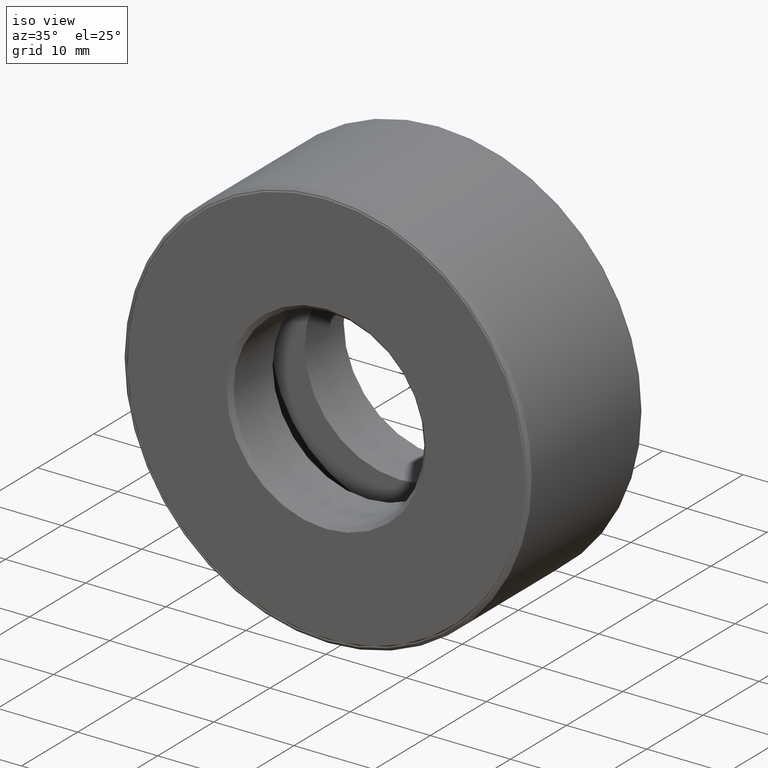
[diagram: clean part render]
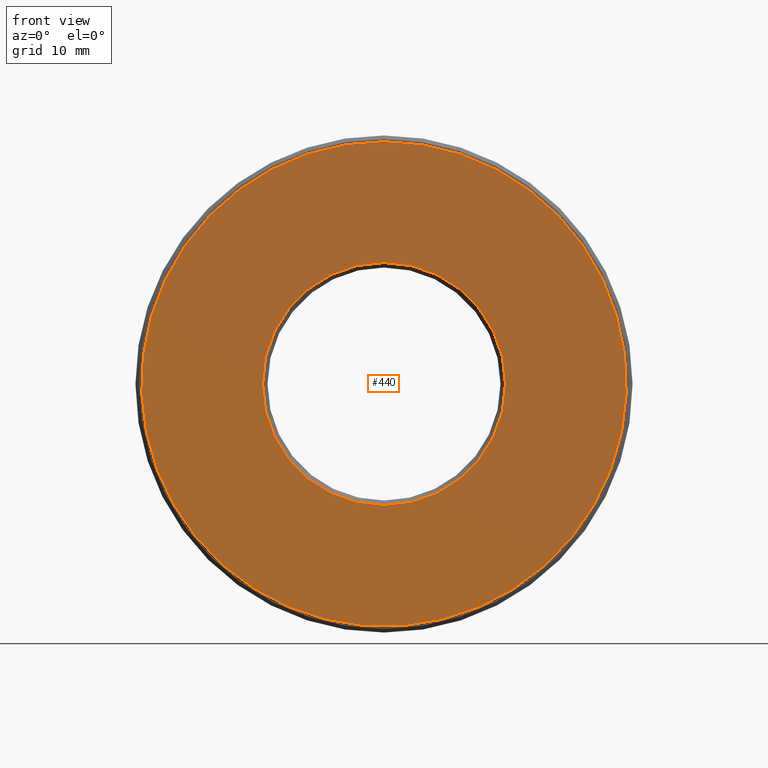
[diagram: tour spotlight — one face highlighted and labeled with its STEP entity id]
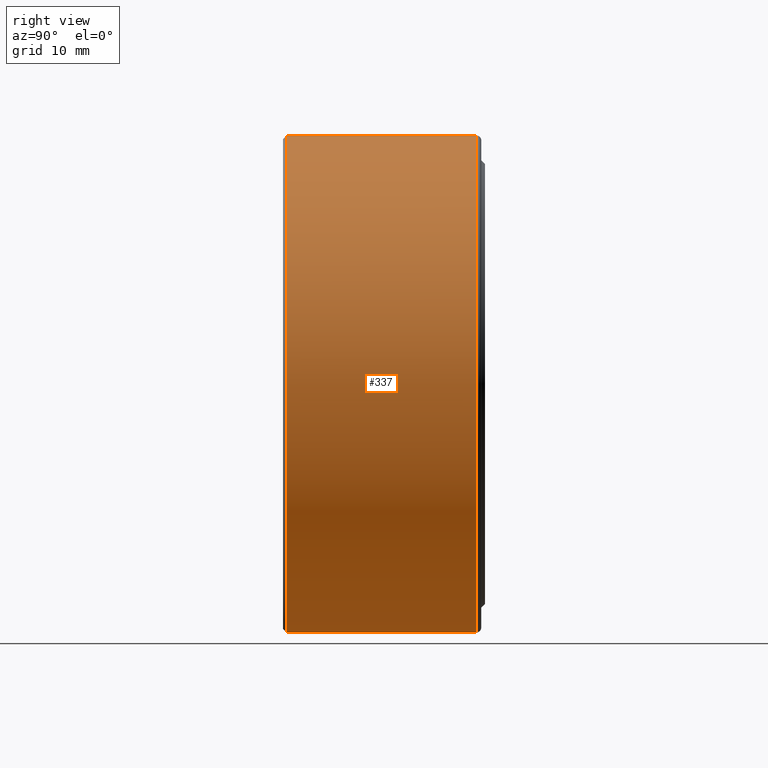
[diagram: tour spotlight — one face highlighted and labeled with its STEP entity id]
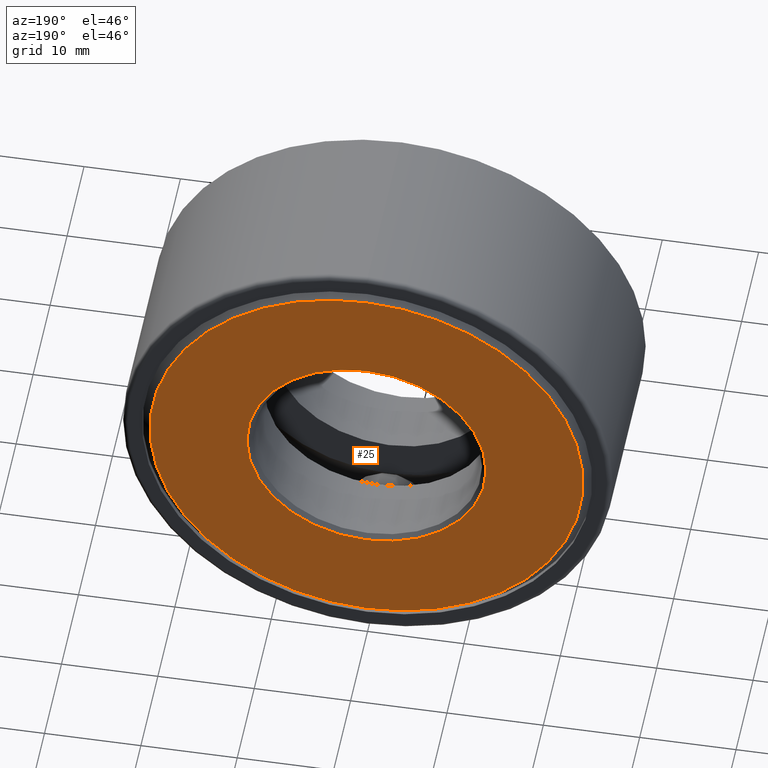
[diagram: tour spotlight — one face highlighted and labeled with its STEP entity id]
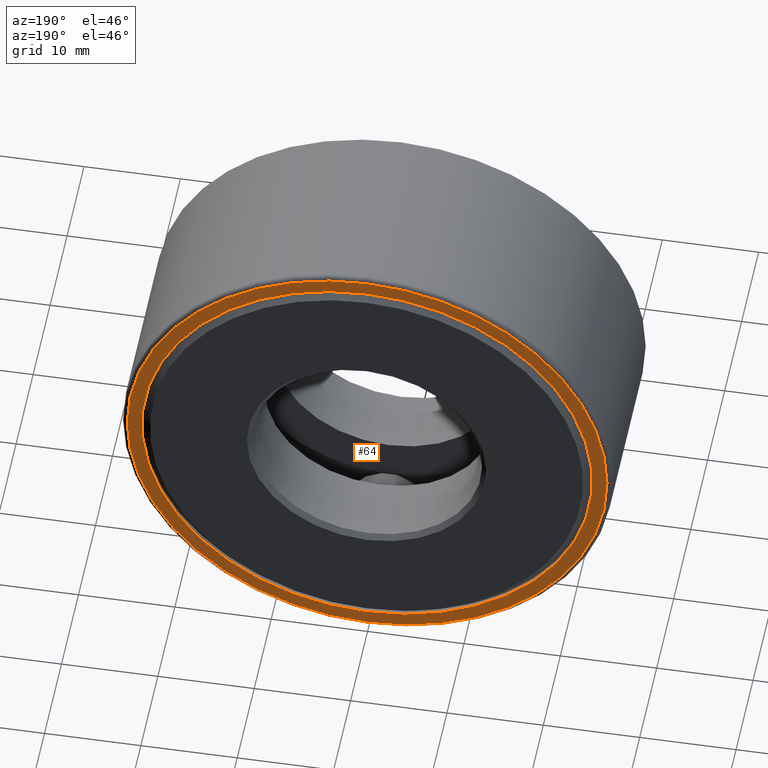
[diagram: tour spotlight — one face highlighted and labeled with its STEP entity id]
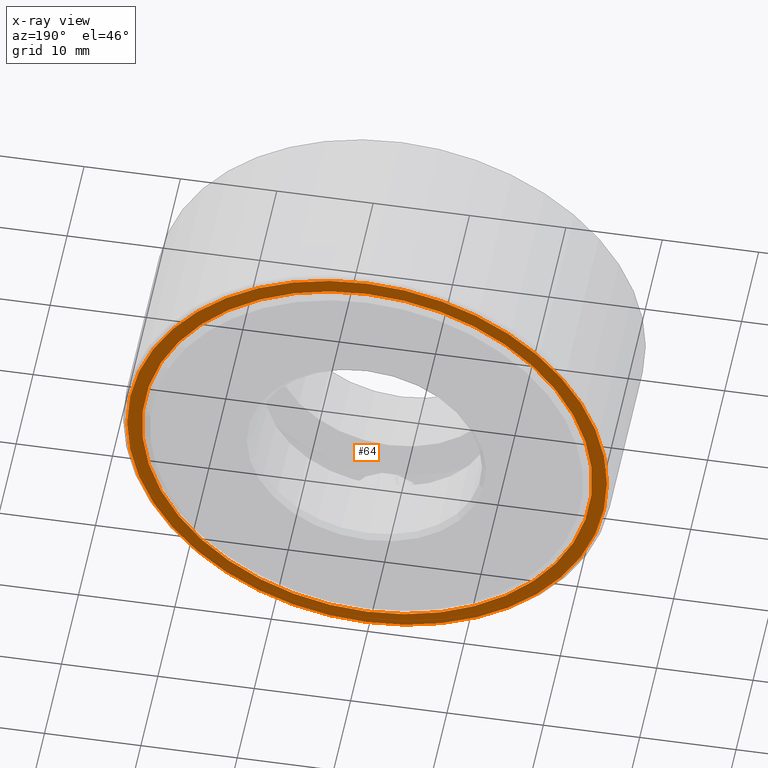
[diagram: x-ray of the same camera — body ghosted, this tour face saturated]
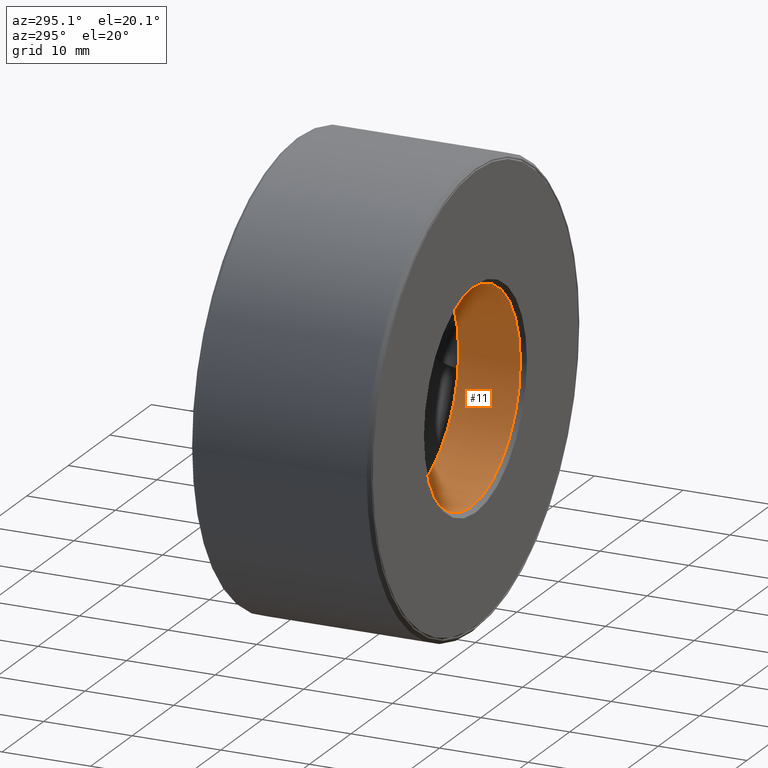
[diagram: tour spotlight — one face highlighted and labeled with its STEP entity id]
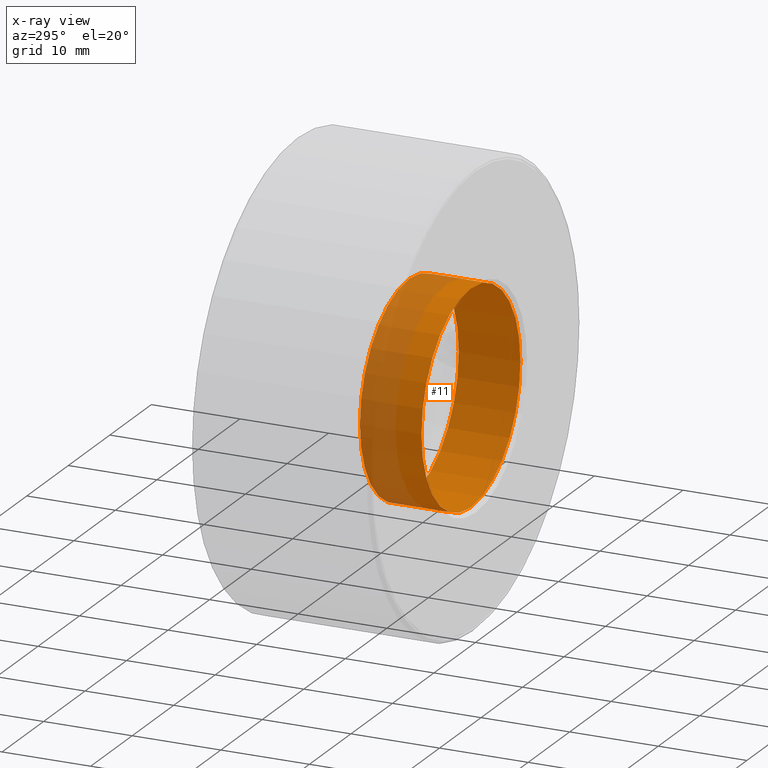
[diagram: x-ray of the same camera — body ghosted, this tour face saturated]
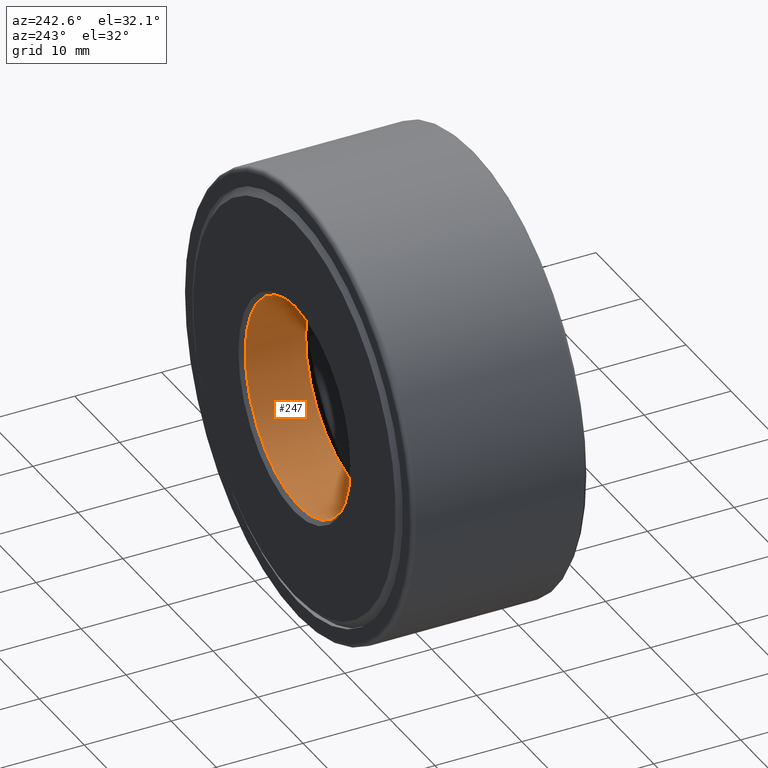
[diagram: tour spotlight — one face highlighted and labeled with its STEP entity id]
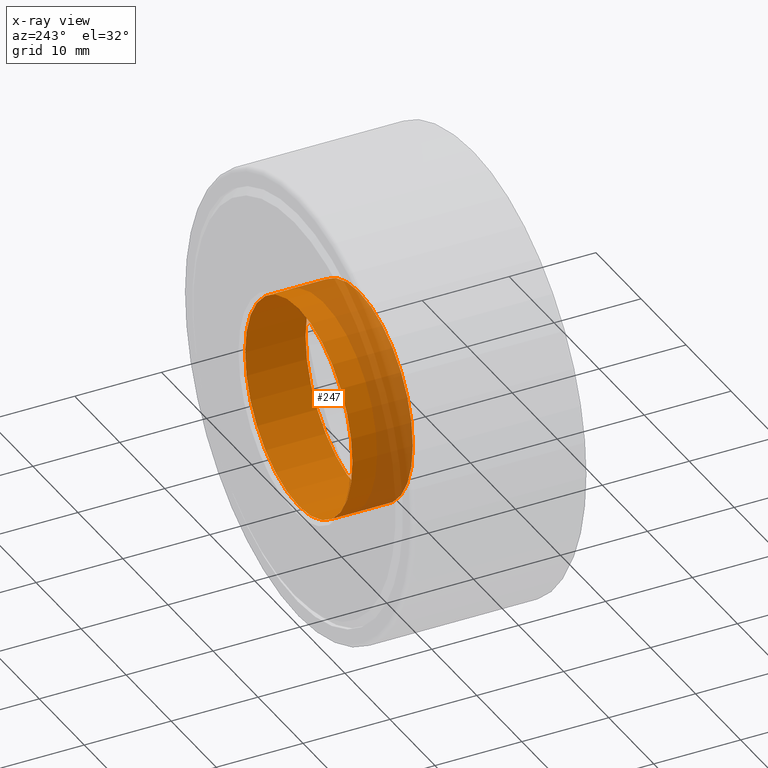
[diagram: x-ray of the same camera — body ghosted, this tour face saturated]
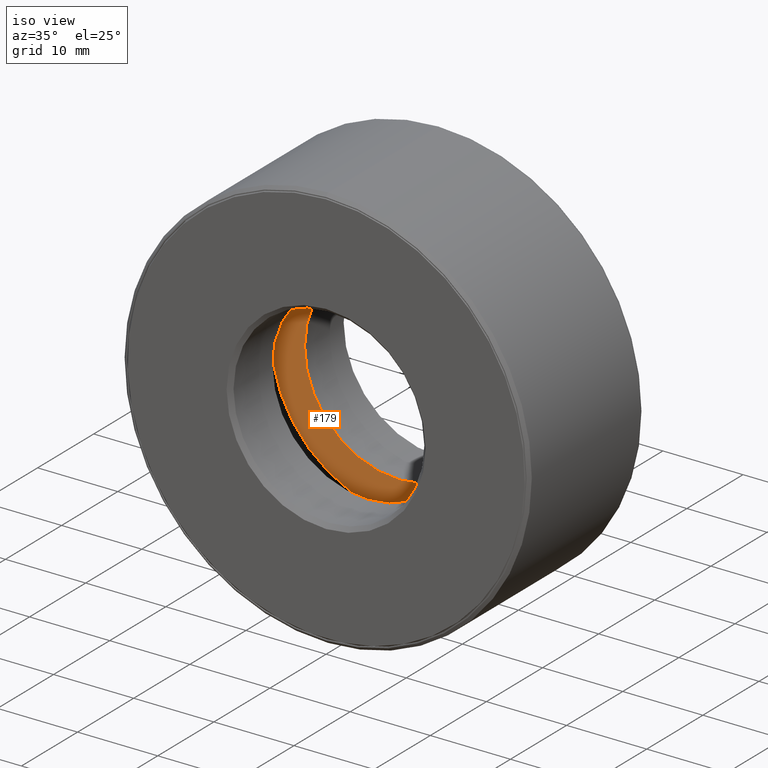
[diagram: tour spotlight — one face highlighted and labeled with its STEP entity id]
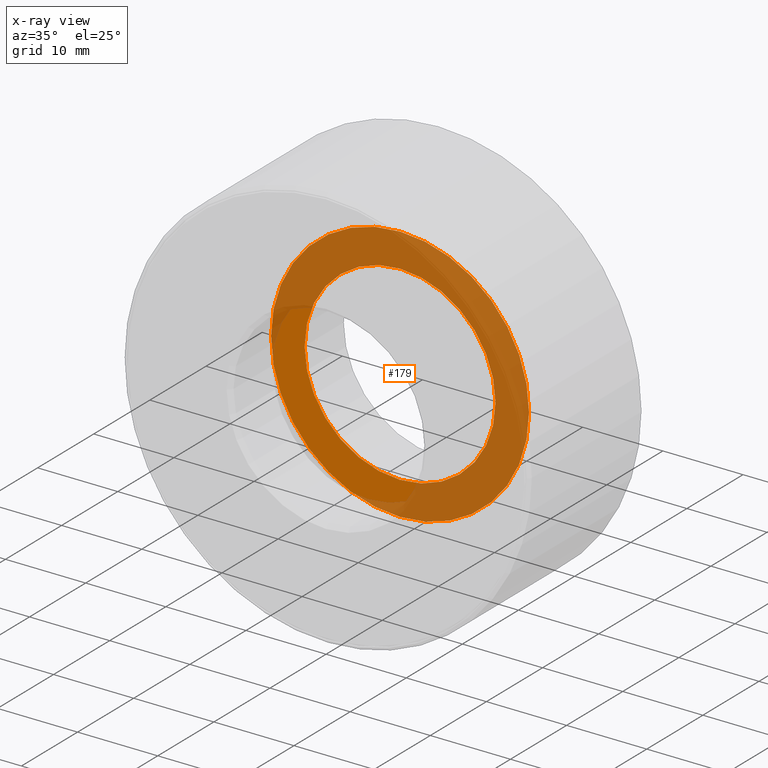
[diagram: x-ray of the same camera — body ghosted, this tour face saturated]
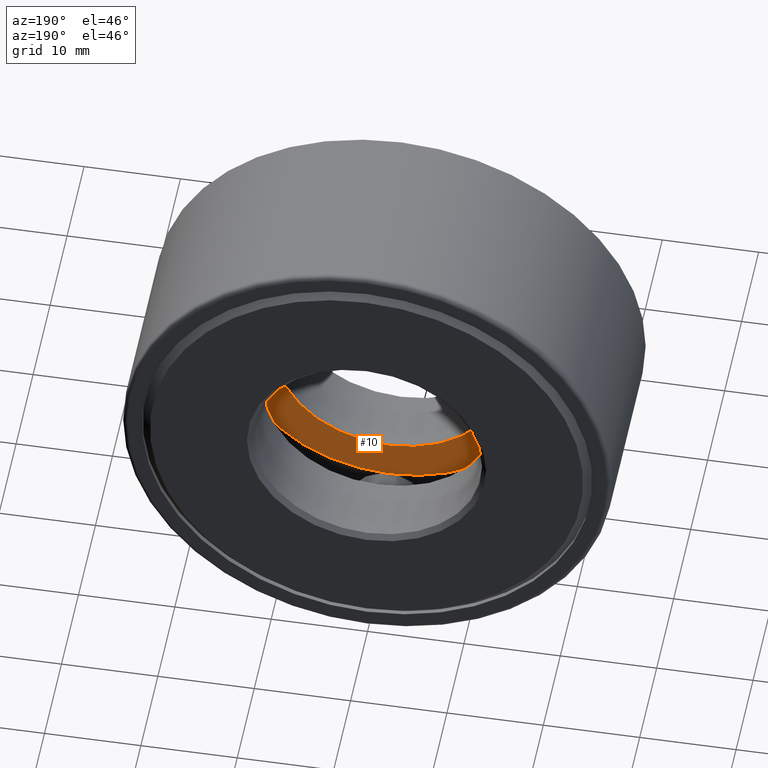
[diagram: tour spotlight — one face highlighted and labeled with its STEP entity id]
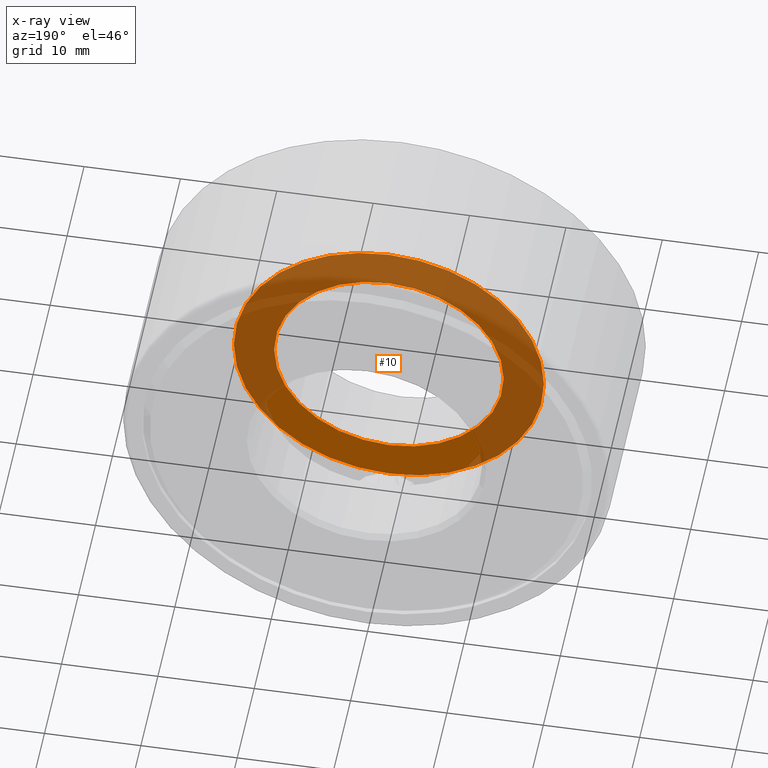
[diagram: x-ray of the same camera — body ghosted, this tour face saturated]
A machine part: a face-by-face anatomy tour. The part has 28 B-rep faces; the first image is the clean iso view, then the 8 largest visible faces are spotlighted one at a time (largest first), each with its STEP entity span.

Face 1 — front view, entity #440. In plain terms, the highlighted planar face has unit normal (-0, 1, 0).
Definition (entity closure, byte-faithful):
#8 = VERTEX_POINT ( 'NONE', #369 ) ;
#49 = AXIS2_PLACEMENT_3D ( 'NONE', #418, #455, #141 ) ;
#119 = CIRCLE ( 'NONE', #49, 0.4887500000000000700 ) ;
#135 = PLANE ( 'NONE',  #310 ) ;
#141 = DIRECTION ( 'NONE',  ( 0.0000000000000000000, 0.0000000000000000000, 1.000000000000000000 ) ) ;
#142 = CARTESIAN_POINT ( 'NONE',  ( -8.194164824205915600E-033, -3.148027961449053600E-017, 0.0000000000000000000 ) ) ;
#143 = DIRECTION ( 'NONE',  ( -0.0000000000000000000, 1.000000000000000000, 0.0000000000000000000 ) ) ;
#227 = EDGE_LOOP ( 'NONE', ( #379 ) ) ;
#233 = DIRECTION ( 'NONE',  ( 0.0000000000000000000, 0.0000000000000000000, 1.000000000000000000 ) ) ;
#276 = EDGE_CURVE ( 'NONE', #511, #511, #119, .T. ) ;
#292 = CIRCLE ( 'NONE', #415, 0.9749999999999999800 ) ;
#310 = AXIS2_PLACEMENT_3D ( 'NONE', #142, #143, #461 ) ;
#313 = EDGE_CURVE ( 'NONE', #8, #8, #292, .T. ) ;
#344 = ORIENTED_EDGE ( 'NONE', *, *, #276, .T. ) ;
#362 = CARTESIAN_POINT ( 'NONE',  ( 0.0000000000000000000, 0.0000000000000000000, 0.4887500000000000700 ) ) ;
#369 = CARTESIAN_POINT ( 'NONE',  ( 0.0000000000000000000, -6.296055922898104700E-017, 0.9749999999999999800 ) ) ;
#379 = ORIENTED_EDGE ( 'NONE', *, *, #313, .F. ) ;
#415 = AXIS2_PLACEMENT_3D ( 'NONE', #605, #512, #233 ) ;
#418 = CARTESIAN_POINT ( 'NONE',  ( 0.0000000000000000000, 0.0000000000000000000, 0.0000000000000000000 ) ) ;
#431 = FACE_BOUND ( 'NONE', #510, .T. ) ;
#440 = ADVANCED_FACE ( 'NONE', ( #566, #431 ), #135, .F. ) ;
#455 = DIRECTION ( 'NONE',  ( -0.0000000000000000000, 1.000000000000000000, -0.0000000000000000000 ) ) ;
#461 = DIRECTION ( 'NONE',  ( 0.0000000000000000000, 0.0000000000000000000, 1.000000000000000000 ) ) ;
#510 = EDGE_LOOP ( 'NONE', ( #344 ) ) ;
#511 = VERTEX_POINT ( 'NONE', #362 ) ;
#512 = DIRECTION ( 'NONE',  ( -0.0000000000000000000, 1.000000000000000000, -0.0000000000000000000 ) ) ;
#566 = FACE_OUTER_BOUND ( 'NONE', #227, .T. ) ;
#605 = CARTESIAN_POINT ( 'NONE',  ( 0.0000000000000000000, -6.296055922898104700E-017, 0.0000000000000000000 ) ) ;

Face 2 — right view, entity #337. In plain terms, the highlighted cylindrical surface (bore or boss wall) has radius 25.4 mm, axis along (-0, 1, -0).
Definition (entity closure, byte-faithful):
#6 = EDGE_CURVE ( 'NONE', #521, #521, #57, .T. ) ;
#40 = EDGE_LOOP ( 'NONE', ( #353 ) ) ;
#50 = CARTESIAN_POINT ( 'NONE',  ( 0.0000000000000000000, 0.01499999999999997700, 0.0000000000000000000 ) ) ;
#57 = CIRCLE ( 'NONE', #103, 0.9999999999999998900 ) ;
#68 = CIRCLE ( 'NONE', #239, 1.000000000000000000 ) ;
#93 = FACE_OUTER_BOUND ( 'NONE', #491, .T. ) ;
#103 = AXIS2_PLACEMENT_3D ( 'NONE', #50, #158, #427 ) ;
#158 = DIRECTION ( 'NONE',  ( -0.0000000000000000000, 1.000000000000000000, -0.0000000000000000000 ) ) ;
#161 = ORIENTED_EDGE ( 'NONE', *, *, #6, .T. ) ;
#219 = FACE_OUTER_BOUND ( 'NONE', #40, .T. ) ;
#239 = AXIS2_PLACEMENT_3D ( 'NONE', #606, #597, #417 ) ;
#266 = EDGE_CURVE ( 'NONE', #540, #540, #68, .T. ) ;
#301 = CYLINDRICAL_SURFACE ( 'NONE', #382, 1.000000000000000000 ) ;
#330 = CARTESIAN_POINT ( 'NONE',  ( 0.0000000000000000000, 0.0000000000000000000, 0.0000000000000000000 ) ) ;
#337 = ADVANCED_FACE ( 'NONE', ( #219, #93 ), #301, .T. ) ;
#353 = ORIENTED_EDGE ( 'NONE', *, *, #266, .F. ) ;
#382 = AXIS2_PLACEMENT_3D ( 'NONE', #330, #517, #456 ) ;
#417 = DIRECTION ( 'NONE',  ( 0.0000000000000000000, 0.0000000000000000000, 1.000000000000000000 ) ) ;
#427 = DIRECTION ( 'NONE',  ( 0.0000000000000000000, 0.0000000000000000000, 1.000000000000000000 ) ) ;
#456 = DIRECTION ( 'NONE',  ( 0.0000000000000000000, 0.0000000000000000000, 1.000000000000000000 ) ) ;
#491 = EDGE_LOOP ( 'NONE', ( #161 ) ) ;
#517 = DIRECTION ( 'NONE',  ( -0.0000000000000000000, 1.000000000000000000, -0.0000000000000000000 ) ) ;
#521 = VERTEX_POINT ( 'NONE', #544 ) ;
#540 = VERTEX_POINT ( 'NONE', #593 ) ;
#544 = CARTESIAN_POINT ( 'NONE',  ( 0.0000000000000000000, 0.01499999999999997700, 0.9999999999999998900 ) ) ;
#593 = CARTESIAN_POINT ( 'NONE',  ( 0.0000000000000000000, 0.7774999999999998600, 1.000000000000000000 ) ) ;
#597 = DIRECTION ( 'NONE',  ( -0.0000000000000000000, 1.000000000000000000, -0.0000000000000000000 ) ) ;
#606 = CARTESIAN_POINT ( 'NONE',  ( 0.0000000000000000000, 0.7774999999999998600, 0.0000000000000000000 ) ) ;

Face 3 — auxiliary view, entity #25. In plain terms, the highlighted planar face has unit normal (-0, 1, 0).
Definition (entity closure, byte-faithful):
#25 = ADVANCED_FACE ( 'NONE', ( #78, #547 ), #429, .T. ) ;
#30 = CARTESIAN_POINT ( 'NONE',  ( 0.0000000000000000000, 0.8125000000000000000, 0.8849999999999996800 ) ) ;
#78 = FACE_OUTER_BOUND ( 'NONE', #92, .T. ) ;
#92 = EDGE_LOOP ( 'NONE', ( #197 ) ) ;
#164 = EDGE_CURVE ( 'NONE', #534, #534, #470, .T. ) ;
#172 = DIRECTION ( 'NONE',  ( -0.0000000000000000000, 1.000000000000000000, -0.0000000000000000000 ) ) ;
#173 = AXIS2_PLACEMENT_3D ( 'NONE', #450, #172, #587 ) ;
#191 = ORIENTED_EDGE ( 'NONE', *, *, #164, .F. ) ;
#197 = ORIENTED_EDGE ( 'NONE', *, *, #473, .T. ) ;
#199 = CARTESIAN_POINT ( 'NONE',  ( 0.0000000000000000000, 0.8125000000000000000, 0.0000000000000000000 ) ) ;
#208 = DIRECTION ( 'NONE',  ( 0.0000000000000000000, 0.0000000000000000000, 1.000000000000000000 ) ) ;
#241 = VERTEX_POINT ( 'NONE', #30 ) ;
#243 = CARTESIAN_POINT ( 'NONE',  ( 0.0000000000000000000, 0.8125000000000000000, 0.0000000000000000000 ) ) ;
#251 = CIRCLE ( 'NONE', #366, 0.8849999999999996800 ) ;
#286 = DIRECTION ( 'NONE',  ( 0.0000000000000000000, 0.0000000000000000000, 1.000000000000000000 ) ) ;
#311 = CARTESIAN_POINT ( 'NONE',  ( 0.0000000000000000000, 0.8125000000000000000, 0.4887500000000001300 ) ) ;
#366 = AXIS2_PLACEMENT_3D ( 'NONE', #243, #563, #286 ) ;
#412 = EDGE_LOOP ( 'NONE', ( #191 ) ) ;
#429 = PLANE ( 'NONE',  #530 ) ;
#450 = CARTESIAN_POINT ( 'NONE',  ( 0.0000000000000000000, 0.8125000000000000000, 0.0000000000000000000 ) ) ;
#470 = CIRCLE ( 'NONE', #173, 0.4887500000000001300 ) ;
#473 = EDGE_CURVE ( 'NONE', #241, #241, #251, .T. ) ;
#482 = DIRECTION ( 'NONE',  ( -0.0000000000000000000, 1.000000000000000000, 0.0000000000000000000 ) ) ;
#530 = AXIS2_PLACEMENT_3D ( 'NONE', #199, #482, #208 ) ;
#534 = VERTEX_POINT ( 'NONE', #311 ) ;
#547 = FACE_BOUND ( 'NONE', #412, .T. ) ;
#563 = DIRECTION ( 'NONE',  ( -0.0000000000000000000, 1.000000000000000000, -0.0000000000000000000 ) ) ;
#587 = DIRECTION ( 'NONE',  ( 0.0000000000000000000, 0.0000000000000000000, 1.000000000000000000 ) ) ;

Face 4 — auxiliary view, entity #64. An x-ray twin of the same camera follows (body ghosted, this face saturated) — the face is partly hidden behind the body. In plain terms, the highlighted planar face has unit normal (0, -1, 0).
Definition (entity closure, byte-faithful):
#4 = CIRCLE ( 'NONE', #7, 0.9799999999999999800 ) ;
#5 = AXIS2_PLACEMENT_3D ( 'NONE', #258, #578, #65 ) ;
#7 = AXIS2_PLACEMENT_3D ( 'NONE', #463, #42, #561 ) ;
#16 = PLANE ( 'NONE',  #5 ) ;
#42 = DIRECTION ( 'NONE',  ( -0.0000000000000000000, 1.000000000000000000, -0.0000000000000000000 ) ) ;
#56 = EDGE_CURVE ( 'NONE', #361, #361, #351, .T. ) ;
#64 = ADVANCED_FACE ( 'NONE', ( #88, #370 ), #16, .F. ) ;
#65 = DIRECTION ( 'NONE',  ( 0.0000000000000000000, -0.0000000000000000000, -1.000000000000000000 ) ) ;
#72 = CARTESIAN_POINT ( 'NONE',  ( 0.0000000000000000000, 0.7974999999999998800, 0.9200000000000000400 ) ) ;
#88 = FACE_BOUND ( 'NONE', #535, .T. ) ;
#202 = CARTESIAN_POINT ( 'NONE',  ( 0.0000000000000000000, 0.7974999999999998800, 0.0000000000000000000 ) ) ;
#212 = VERTEX_POINT ( 'NONE', #447 ) ;
#250 = ORIENTED_EDGE ( 'NONE', *, *, #56, .F. ) ;
#258 = CARTESIAN_POINT ( 'NONE',  ( 0.0000000000000000000, 0.7974999999999998800, 0.0000000000000000000 ) ) ;
#284 = EDGE_LOOP ( 'NONE', ( #430 ) ) ;
#351 = CIRCLE ( 'NONE', #586, 0.9200000000000000400 ) ;
#361 = VERTEX_POINT ( 'NONE', #72 ) ;
#370 = FACE_OUTER_BOUND ( 'NONE', #284, .T. ) ;
#397 = DIRECTION ( 'NONE',  ( -0.0000000000000000000, 1.000000000000000000, -0.0000000000000000000 ) ) ;
#430 = ORIENTED_EDGE ( 'NONE', *, *, #453, .T. ) ;
#447 = CARTESIAN_POINT ( 'NONE',  ( 0.0000000000000000000, 0.7974999999999998800, 0.9799999999999999800 ) ) ;
#453 = EDGE_CURVE ( 'NONE', #212, #212, #4, .T. ) ;
#463 = CARTESIAN_POINT ( 'NONE',  ( 0.0000000000000000000, 0.7974999999999998800, 0.0000000000000000000 ) ) ;
#471 = DIRECTION ( 'NONE',  ( 0.0000000000000000000, 0.0000000000000000000, 1.000000000000000000 ) ) ;
#535 = EDGE_LOOP ( 'NONE', ( #250 ) ) ;
#561 = DIRECTION ( 'NONE',  ( 0.0000000000000000000, 0.0000000000000000000, 1.000000000000000000 ) ) ;
#578 = DIRECTION ( 'NONE',  ( 0.0000000000000000000, -1.000000000000000000, 0.0000000000000000000 ) ) ;
#586 = AXIS2_PLACEMENT_3D ( 'NONE', #202, #397, #471 ) ;

Face 5 — auxiliary view, entity #11. An x-ray twin of the same camera follows (body ghosted, this face saturated) — the face is partly hidden behind the body. In plain terms, the highlighted cylindrical surface (bore or boss wall) has radius 11.9062 mm, axis along (-0, 1, -0).
Definition (entity closure, byte-faithful):
#11 = ADVANCED_FACE ( 'NONE', ( #195, #400 ), #96, .F. ) ;
#36 = CIRCLE ( 'NONE', #100, 0.4687500000000001100 ) ;
#46 = ORIENTED_EDGE ( 'NONE', *, *, #94, .T. ) ;
#55 = CARTESIAN_POINT ( 'NONE',  ( 0.0000000000000000000, 0.0000000000000000000, 0.0000000000000000000 ) ) ;
#86 = CARTESIAN_POINT ( 'NONE',  ( 0.0000000000000000000, 0.2937500000000000100, 0.4687500000000001100 ) ) ;
#94 = EDGE_CURVE ( 'NONE', #381, #381, #36, .T. ) ;
#96 = CYLINDRICAL_SURFACE ( 'NONE', #282, 0.4687500000000000000 ) ;
#100 = AXIS2_PLACEMENT_3D ( 'NONE', #485, #532, #531 ) ;
#111 = EDGE_CURVE ( 'NONE', #138, #138, #438, .T. ) ;
#138 = VERTEX_POINT ( 'NONE', #187 ) ;
#168 = EDGE_LOOP ( 'NONE', ( #46 ) ) ;
#187 = CARTESIAN_POINT ( 'NONE',  ( 0.0000000000000000000, 0.02000000000000005900, 0.4687500000000000000 ) ) ;
#195 = FACE_OUTER_BOUND ( 'NONE', #435, .T. ) ;
#259 = DIRECTION ( 'NONE',  ( -0.0000000000000000000, 1.000000000000000000, -0.0000000000000000000 ) ) ;
#268 = ORIENTED_EDGE ( 'NONE', *, *, #111, .F. ) ;
#282 = AXIS2_PLACEMENT_3D ( 'NONE', #55, #395, #393 ) ;
#381 = VERTEX_POINT ( 'NONE', #86 ) ;
#393 = DIRECTION ( 'NONE',  ( 0.0000000000000000000, 0.0000000000000000000, 1.000000000000000000 ) ) ;
#395 = DIRECTION ( 'NONE',  ( -0.0000000000000000000, 1.000000000000000000, -0.0000000000000000000 ) ) ;
#400 = FACE_OUTER_BOUND ( 'NONE', #168, .T. ) ;
#435 = EDGE_LOOP ( 'NONE', ( #268 ) ) ;
#438 = CIRCLE ( 'NONE', #472, 0.4687500000000000000 ) ;
#472 = AXIS2_PLACEMENT_3D ( 'NONE', #490, #259, #580 ) ;
#485 = CARTESIAN_POINT ( 'NONE',  ( 0.0000000000000000000, 0.2937500000000000100, 0.0000000000000000000 ) ) ;
#490 = CARTESIAN_POINT ( 'NONE',  ( 0.0000000000000000000, 0.02000000000000005900, 0.0000000000000000000 ) ) ;
#531 = DIRECTION ( 'NONE',  ( 0.0000000000000000000, 0.0000000000000000000, 1.000000000000000000 ) ) ;
#532 = DIRECTION ( 'NONE',  ( -0.0000000000000000000, 1.000000000000000000, -0.0000000000000000000 ) ) ;
#580 = DIRECTION ( 'NONE',  ( 0.0000000000000000000, 0.0000000000000000000, 1.000000000000000000 ) ) ;

Face 6 — auxiliary view, entity #247. An x-ray twin of the same camera follows (body ghosted, this face saturated) — the face is partly hidden behind the body. In plain terms, the highlighted cylindrical surface (bore or boss wall) has radius 11.9063 mm, axis along (-0, 1, -0).
Definition (entity closure, byte-faithful):
#32 = VERTEX_POINT ( 'NONE', #267 ) ;
#37 = EDGE_CURVE ( 'NONE', #32, #32, #476, .T. ) ;
#52 = AXIS2_PLACEMENT_3D ( 'NONE', #152, #109, #475 ) ;
#63 = EDGE_CURVE ( 'NONE', #424, #424, #116, .T. ) ;
#80 = AXIS2_PLACEMENT_3D ( 'NONE', #355, #398, #495 ) ;
#83 = FACE_OUTER_BOUND ( 'NONE', #211, .T. ) ;
#109 = DIRECTION ( 'NONE',  ( -0.0000000000000000000, 1.000000000000000000, -0.0000000000000000000 ) ) ;
#115 = CYLINDRICAL_SURFACE ( 'NONE', #147, 0.4687500000000001100 ) ;
#116 = CIRCLE ( 'NONE', #80, 0.4687500000000001100 ) ;
#147 = AXIS2_PLACEMENT_3D ( 'NONE', #181, #545, #411 ) ;
#152 = CARTESIAN_POINT ( 'NONE',  ( 0.0000000000000000000, 0.5187500000000000400, 0.0000000000000000000 ) ) ;
#181 = CARTESIAN_POINT ( 'NONE',  ( 0.0000000000000000000, 0.0000000000000000000, 0.0000000000000000000 ) ) ;
#211 = EDGE_LOOP ( 'NONE', ( #383 ) ) ;
#247 = ADVANCED_FACE ( 'NONE', ( #263, #83 ), #115, .F. ) ;
#263 = FACE_OUTER_BOUND ( 'NONE', #466, .T. ) ;
#267 = CARTESIAN_POINT ( 'NONE',  ( 0.0000000000000000000, 0.5187500000000000400, 0.4687500000000001100 ) ) ;
#355 = CARTESIAN_POINT ( 'NONE',  ( 0.0000000000000000000, 0.7924999999999999800, 0.0000000000000000000 ) ) ;
#383 = ORIENTED_EDGE ( 'NONE', *, *, #37, .F. ) ;
#398 = DIRECTION ( 'NONE',  ( -0.0000000000000000000, 1.000000000000000000, -0.0000000000000000000 ) ) ;
#411 = DIRECTION ( 'NONE',  ( 0.0000000000000000000, 0.0000000000000000000, 1.000000000000000000 ) ) ;
#424 = VERTEX_POINT ( 'NONE', #588 ) ;
#466 = EDGE_LOOP ( 'NONE', ( #500 ) ) ;
#475 = DIRECTION ( 'NONE',  ( 0.0000000000000000000, 0.0000000000000000000, 1.000000000000000000 ) ) ;
#476 = CIRCLE ( 'NONE', #52, 0.4687500000000001100 ) ;
#495 = DIRECTION ( 'NONE',  ( 0.0000000000000000000, 0.0000000000000000000, 1.000000000000000000 ) ) ;
#500 = ORIENTED_EDGE ( 'NONE', *, *, #63, .T. ) ;
#545 = DIRECTION ( 'NONE',  ( -0.0000000000000000000, 1.000000000000000000, -0.0000000000000000000 ) ) ;
#588 = CARTESIAN_POINT ( 'NONE',  ( 0.0000000000000000000, 0.7924999999999999800, 0.4687500000000001100 ) ) ;

Face 7 — iso view, entity #179. An x-ray twin of the same camera follows (body ghosted, this face saturated) — the face is partly hidden behind the body. In plain terms, the highlighted planar face has unit normal (0, -1, 0).
Definition (entity closure, byte-faithful):
#32 = VERTEX_POINT ( 'NONE', #267 ) ;
#35 = ORIENTED_EDGE ( 'NONE', *, *, #37, .T. ) ;
#37 = EDGE_CURVE ( 'NONE', #32, #32, #476, .T. ) ;
#52 = AXIS2_PLACEMENT_3D ( 'NONE', #152, #109, #475 ) ;
#74 = PLANE ( 'NONE',  #349 ) ;
#109 = DIRECTION ( 'NONE',  ( -0.0000000000000000000, 1.000000000000000000, -0.0000000000000000000 ) ) ;
#127 = DIRECTION ( 'NONE',  ( 0.0000000000000000000, -0.0000000000000000000, -1.000000000000000000 ) ) ;
#152 = CARTESIAN_POINT ( 'NONE',  ( 0.0000000000000000000, 0.5187500000000000400, 0.0000000000000000000 ) ) ;
#159 = EDGE_CURVE ( 'NONE', #519, #519, #592, .T. ) ;
#169 = FACE_OUTER_BOUND ( 'NONE', #205, .T. ) ;
#178 = CARTESIAN_POINT ( 'NONE',  ( 0.0000000000000000000, 0.5187499999999999300, 0.6334999999999999500 ) ) ;
#179 = ADVANCED_FACE ( 'NONE', ( #373, #169 ), #74, .T. ) ;
#205 = EDGE_LOOP ( 'NONE', ( #214 ) ) ;
#214 = ORIENTED_EDGE ( 'NONE', *, *, #159, .F. ) ;
#267 = CARTESIAN_POINT ( 'NONE',  ( 0.0000000000000000000, 0.5187500000000000400, 0.4687500000000001100 ) ) ;
#349 = AXIS2_PLACEMENT_3D ( 'NONE', #359, #407, #127 ) ;
#359 = CARTESIAN_POINT ( 'NONE',  ( -2.150449388032380200E-016, 0.5187500000000000400, 0.0000000000000000000 ) ) ;
#373 = FACE_BOUND ( 'NONE', #564, .T. ) ;
#407 = DIRECTION ( 'NONE',  ( 0.0000000000000000000, -1.000000000000000000, 0.0000000000000000000 ) ) ;
#445 = DIRECTION ( 'NONE',  ( -0.0000000000000000000, 1.000000000000000000, -0.0000000000000000000 ) ) ;
#475 = DIRECTION ( 'NONE',  ( 0.0000000000000000000, 0.0000000000000000000, 1.000000000000000000 ) ) ;
#476 = CIRCLE ( 'NONE', #52, 0.4687500000000001100 ) ;
#519 = VERTEX_POINT ( 'NONE', #178 ) ;
#555 = AXIS2_PLACEMENT_3D ( 'NONE', #594, #445, #585 ) ;
#564 = EDGE_LOOP ( 'NONE', ( #35 ) ) ;
#585 = DIRECTION ( 'NONE',  ( 0.0000000000000000000, 0.0000000000000000000, 1.000000000000000000 ) ) ;
#592 = CIRCLE ( 'NONE', #555, 0.6334999999999999500 ) ;
#594 = CARTESIAN_POINT ( 'NONE',  ( 0.0000000000000000000, 0.5187499999999999300, 0.0000000000000000000 ) ) ;

Face 8 — auxiliary view, entity #10. An x-ray twin of the same camera follows (body ghosted, this face saturated) — the face is partly hidden behind the body. In plain terms, the highlighted planar face has unit normal (0, -1, 0).
Definition (entity closure, byte-faithful):
#2 = FACE_BOUND ( 'NONE', #346, .T. ) ;
#10 = ADVANCED_FACE ( 'NONE', ( #2, #331 ), #525, .F. ) ;
#28 = DIRECTION ( 'NONE',  ( -0.0000000000000000000, 1.000000000000000000, -0.0000000000000000000 ) ) ;
#36 = CIRCLE ( 'NONE', #100, 0.4687500000000001100 ) ;
#58 = VERTEX_POINT ( 'NONE', #177 ) ;
#70 = AXIS2_PLACEMENT_3D ( 'NONE', #275, #28, #132 ) ;
#86 = CARTESIAN_POINT ( 'NONE',  ( 0.0000000000000000000, 0.2937500000000000100, 0.4687500000000001100 ) ) ;
#94 = EDGE_CURVE ( 'NONE', #381, #381, #36, .T. ) ;
#100 = AXIS2_PLACEMENT_3D ( 'NONE', #485, #532, #531 ) ;
#102 = DIRECTION ( 'NONE',  ( 0.0000000000000000000, -0.0000000000000000000, -1.000000000000000000 ) ) ;
#132 = DIRECTION ( 'NONE',  ( 0.0000000000000000000, 0.0000000000000000000, 1.000000000000000000 ) ) ;
#177 = CARTESIAN_POINT ( 'NONE',  ( 0.0000000000000000000, 0.2937500000000000100, 0.6334999999999999500 ) ) ;
#198 = CIRCLE ( 'NONE', #70, 0.6334999999999999500 ) ;
#238 = EDGE_CURVE ( 'NONE', #58, #58, #198, .T. ) ;
#256 = ORIENTED_EDGE ( 'NONE', *, *, #238, .T. ) ;
#275 = CARTESIAN_POINT ( 'NONE',  ( 0.0000000000000000000, 0.2937500000000000100, 0.0000000000000000000 ) ) ;
#331 = FACE_OUTER_BOUND ( 'NONE', #339, .T. ) ;
#339 = EDGE_LOOP ( 'NONE', ( #256 ) ) ;
#342 = CARTESIAN_POINT ( 'NONE',  ( 0.0000000000000000000, 0.2937500000000000100, 0.0000000000000000000 ) ) ;
#346 = EDGE_LOOP ( 'NONE', ( #518 ) ) ;
#377 = AXIS2_PLACEMENT_3D ( 'NONE', #342, #524, #102 ) ;
#381 = VERTEX_POINT ( 'NONE', #86 ) ;
#485 = CARTESIAN_POINT ( 'NONE',  ( 0.0000000000000000000, 0.2937500000000000100, 0.0000000000000000000 ) ) ;
#518 = ORIENTED_EDGE ( 'NONE', *, *, #94, .F. ) ;
#524 = DIRECTION ( 'NONE',  ( 0.0000000000000000000, -1.000000000000000000, 0.0000000000000000000 ) ) ;
#525 = PLANE ( 'NONE',  #377 ) ;
#531 = DIRECTION ( 'NONE',  ( 0.0000000000000000000, 0.0000000000000000000, 1.000000000000000000 ) ) ;
#532 = DIRECTION ( 'NONE',  ( -0.0000000000000000000, 1.000000000000000000, -0.0000000000000000000 ) ) ;